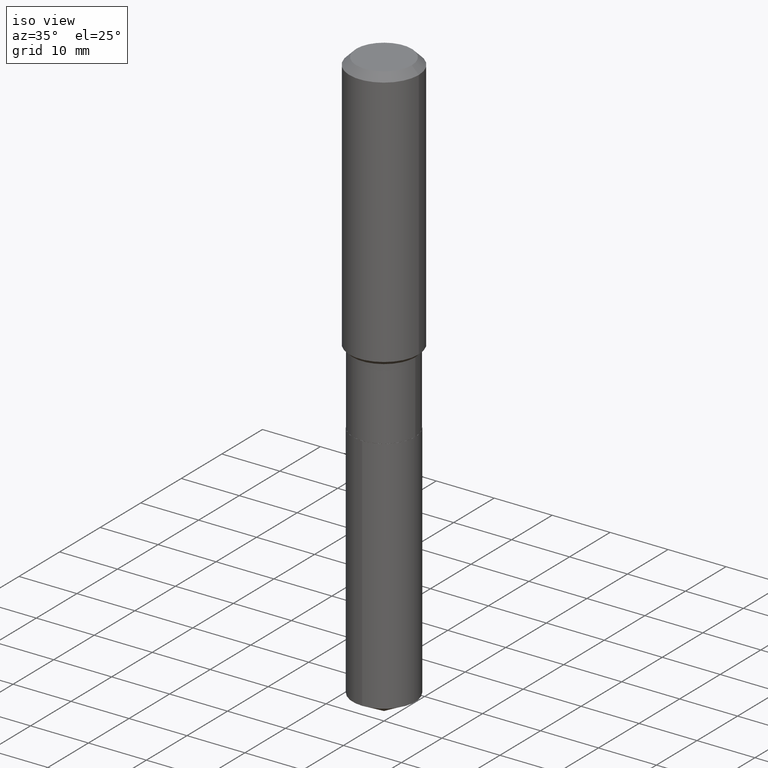
[diagram: clean part render]
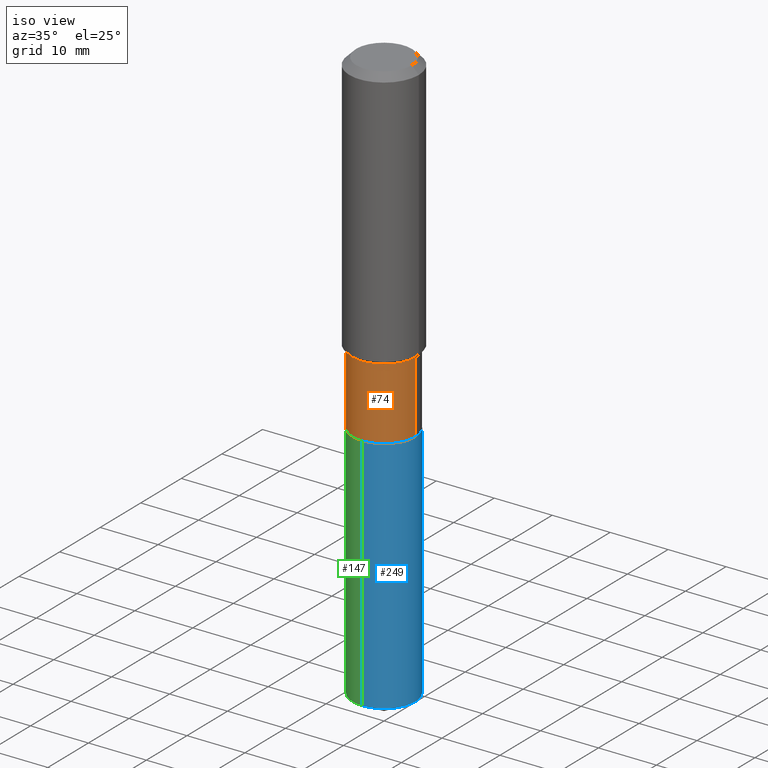
[diagram: same view with three faces highlighted in distinct colors, each labeled with its STEP entity id]
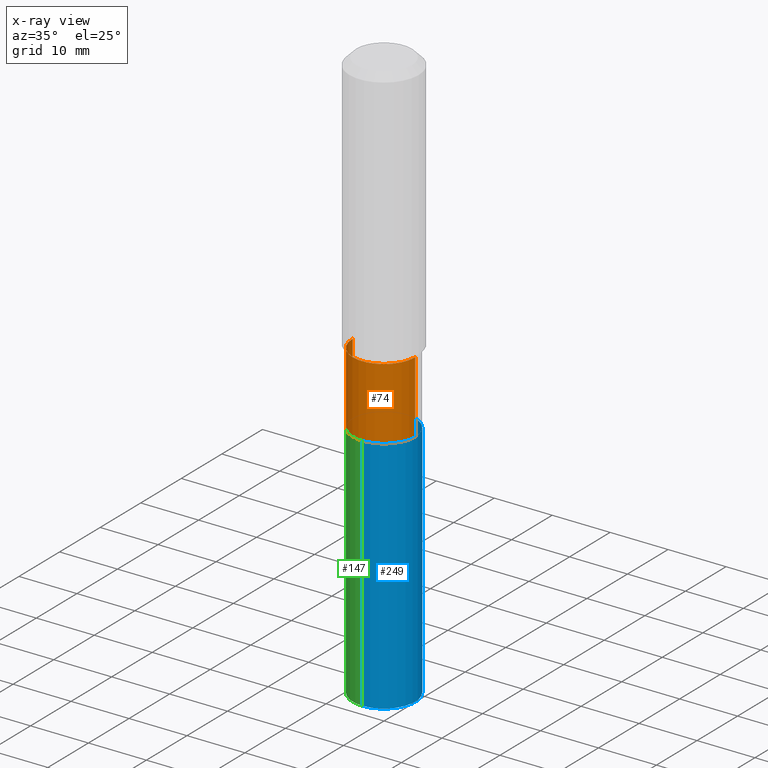
[diagram: x-ray of the same camera — body ghosted, the three highlighted faces saturated]
A machine part, iso view with three faces highlighted in distinct colors.
The next image is the same camera in x-ray (body ghosted, the three faces saturated) — at least one of them is partly hidden behind the body in this view.
Their STEP definitions:

[orange] entity #74 — the highlighted cylindrical surface (partial cylindrical patch) has radius 5.4 mm, axis along (-0, 0, 1).
#8 = DIRECTION ( 'NONE',  ( -2.445468806185136597E-29, 3.491481338843145583E-15, 1.000000000000000000 ) ) ;
#24 = VECTOR ( 'NONE', #298, 39.37007874015748143 ) ;
#34 = EDGE_CURVE ( 'NONE', #475, #96, #302, .T. ) ;
#35 = FACE_OUTER_BOUND ( 'NONE', #450, .T. ) ;
#74 = ADVANCED_FACE ( 'NONE', ( #35 ), #116, .T. ) ;
#82 = DIRECTION ( 'NONE',  ( 1.000000000000000000, -6.982962677686267499E-15, 4.876176775795935232E-29 ) ) ;
#96 = VERTEX_POINT ( 'NONE', #489 ) ;
#102 = CARTESIAN_POINT ( 'NONE',  ( 0.2126000000000000112, -9.427697911144257060E-15, -2.275000000000000355 ) ) ;
#104 = EDGE_CURVE ( 'NONE', #462, #96, #319, .T. ) ;
#116 = CYLINDRICAL_SURFACE ( 'NONE', #453, 0.2125999999999999834 ) ;
#155 = LINE ( 'NONE', #193, #24 ) ;
#161 = CARTESIAN_POINT ( 'NONE',  ( 4.368830022249746176E-29, -6.237531411843279954E-15, -1.786499999999999977 ) ) ;
#192 = VECTOR ( 'NONE', #271, 39.37007874015748143 ) ;
#193 = CARTESIAN_POINT ( 'NONE',  ( -0.2125999999999999834, 1.510613856225972877E-15, -1.045765600188192871E-29 ) ) ;
#199 = ORIENTED_EDGE ( 'NONE', *, *, #439, .T. ) ;
#224 = ORIENTED_EDGE ( 'NONE', *, *, #34, .F. ) ;
#235 = DIRECTION ( 'NONE',  ( -2.445468806185136597E-29, 3.491481338843145583E-15, 1.000000000000000000 ) ) ;
#244 = CARTESIAN_POINT ( 'NONE',  ( -0.2125999999999999279, -5.579711872629745688E-15, -1.786499999999999977 ) ) ;
#245 = DIRECTION ( 'NONE',  ( -2.445468806185136597E-29, 3.491481338843145583E-15, 1.000000000000000000 ) ) ;
#271 = DIRECTION ( 'NONE',  ( -2.445468806185136877E-29, 3.491481338843145188E-15, 1.000000000000000000 ) ) ;
#294 = AXIS2_PLACEMENT_3D ( 'NONE', #161, #245, #456 ) ;
#296 = CARTESIAN_POINT ( 'NONE',  ( 5.563441534071186206E-29, -7.943120045868156782E-15, -2.275000000000000355 ) ) ;
#298 = DIRECTION ( 'NONE',  ( -2.445468806185136877E-29, 3.491481338843145188E-15, 1.000000000000000000 ) ) ;
#302 = CIRCLE ( 'NONE', #294, 0.2125999999999999279 ) ;
#306 = CARTESIAN_POINT ( 'NONE',  ( 0.000000000000000000, 0.000000000000000000, 0.000000000000000000 ) ) ;
#319 = LINE ( 'NONE', #463, #192 ) ;
#349 = VERTEX_POINT ( 'NONE', #373 ) ;
#362 = ORIENTED_EDGE ( 'NONE', *, *, #104, .T. ) ;
#373 = CARTESIAN_POINT ( 'NONE',  ( -0.2126000000000000112, -5.579711872629745688E-15, -2.275000000000000355 ) ) ;
#383 = AXIS2_PLACEMENT_3D ( 'NONE', #296, #235, #481 ) ;
#406 = CIRCLE ( 'NONE', #383, 0.2126000000000000112 ) ;
#424 = EDGE_CURVE ( 'NONE', #349, #475, #155, .T. ) ;
#438 = ORIENTED_EDGE ( 'NONE', *, *, #424, .F. ) ;
#439 = EDGE_CURVE ( 'NONE', #349, #462, #406, .T. ) ;
#450 = EDGE_LOOP ( 'NONE', ( #438, #199, #362, #224 ) ) ;
#453 = AXIS2_PLACEMENT_3D ( 'NONE', #306, #8, #82 ) ;
#456 = DIRECTION ( 'NONE',  ( 1.000000000000000000, -6.982962677686268288E-15, 0.000000000000000000 ) ) ;
#462 = VERTEX_POINT ( 'NONE', #102 ) ;
#463 = CARTESIAN_POINT ( 'NONE',  ( 0.2125999999999999834, -1.484577865276100277E-15, 1.036675182534215730E-29 ) ) ;
#475 = VERTEX_POINT ( 'NONE', #244 ) ;
#481 = DIRECTION ( 'NONE',  ( 1.000000000000000000, -6.982962677686265133E-15, 0.000000000000000000 ) ) ;
#489 = CARTESIAN_POINT ( 'NONE',  ( 0.2125999999999999279, -7.722109277119379442E-15, -1.786499999999999977 ) ) ;

[blue] entity #249 — the highlighted cylindrical surface (partial cylindrical patch) has radius 5.4 mm, axis along (-0, 0, 1).
#7 = DIRECTION ( 'NONE',  ( -2.445557714556851823E-29, 3.491354016994499401E-15, 1.000000000000000000 ) ) ;
#9 = EDGE_CURVE ( 'NONE', #254, #114, #260, .T. ) ;
#21 = AXIS2_PLACEMENT_3D ( 'NONE', #281, #7, #121 ) ;
#40 = CARTESIAN_POINT ( 'NONE',  ( 1.510613856226067935E-15, 0.2125999999999863554, -3.902658574828771432 ) ) ;
#42 = CARTESIAN_POINT ( 'NONE',  ( 1.510613856226068330E-15, 0.2125999999999920453, -2.275500000000000966 ) ) ;
#61 = AXIS2_PLACEMENT_3D ( 'NONE', #123, #422, #434 ) ;
#114 = VERTEX_POINT ( 'NONE', #42 ) ;
#121 = DIRECTION ( 'NONE',  ( -6.982962677686265922E-15, -1.000000000000000000, 3.854912502818809557E-15 ) ) ;
#123 = CARTESIAN_POINT ( 'NONE',  ( 9.543974473954110073E-29, -1.362585241305305094E-14, -3.902658574828770988 ) ) ;
#133 = FACE_OUTER_BOUND ( 'NONE', #228, .T. ) ;
#135 = ORIENTED_EDGE ( 'NONE', *, *, #9, .T. ) ;
#136 = CARTESIAN_POINT ( 'NONE',  ( 5.564664268474277887E-29, -7.944865786537577497E-15, -2.275500000000000078 ) ) ;
#143 = VERTEX_POINT ( 'NONE', #164 ) ;
#145 = EDGE_CURVE ( 'NONE', #361, #254, #339, .T. ) ;
#148 = CARTESIAN_POINT ( 'NONE',  ( -1.484577865276044663E-15, -0.2126000000000079770, -2.275499999999999190 ) ) ;
#164 = CARTESIAN_POINT ( 'NONE',  ( -1.484577865276044663E-15, -0.2126000000000079770, -2.275499999999999190 ) ) ;
#194 = ORIENTED_EDGE ( 'NONE', *, *, #487, .F. ) ;
#213 = DIRECTION ( 'NONE',  ( -6.982962677686265922E-15, -1.000000000000000000, 3.854912502818809557E-15 ) ) ;
#228 = EDGE_LOOP ( 'NONE', ( #404, #135, #194, #460 ) ) ;
#249 = ADVANCED_FACE ( 'NONE', ( #133 ), #341, .T. ) ;
#254 = VERTEX_POINT ( 'NONE', #40 ) ;
#260 = LINE ( 'NONE', #446, #483 ) ;
#264 = DIRECTION ( 'NONE',  ( -2.445557714556851823E-29, 3.491354016994499401E-15, 1.000000000000000000 ) ) ;
#281 = CARTESIAN_POINT ( 'NONE',  ( 5.564664268474277887E-29, -7.944865786537577497E-15, -2.275500000000000078 ) ) ;
#285 = AXIS2_PLACEMENT_3D ( 'NONE', #136, #469, #213 ) ;
#339 = CIRCLE ( 'NONE', #61, 0.2126000000000000112 ) ;
#341 = CYLINDRICAL_SURFACE ( 'NONE', #21, 0.2126000000000000112 ) ;
#343 = CARTESIAN_POINT ( 'NONE',  ( -1.484577865276004825E-15, -0.2126000000000136114, -3.902658574828770099 ) ) ;
#353 = EDGE_CURVE ( 'NONE', #361, #143, #479, .T. ) ;
#361 = VERTEX_POINT ( 'NONE', #343 ) ;
#371 = CIRCLE ( 'NONE', #285, 0.2126000000000000112 ) ;
#404 = ORIENTED_EDGE ( 'NONE', *, *, #145, .T. ) ;
#422 = DIRECTION ( 'NONE',  ( -2.445557714556851823E-29, 3.491354016994499401E-15, 1.000000000000000000 ) ) ;
#431 = VECTOR ( 'NONE', #447, 39.37007874015748143 ) ;
#434 = DIRECTION ( 'NONE',  ( -6.982962677686265922E-15, -1.000000000000000000, 2.569941668545873170E-15 ) ) ;
#446 = CARTESIAN_POINT ( 'NONE',  ( 1.510613856226028295E-15, 0.2125999999999920453, -2.275500000000000966 ) ) ;
#447 = DIRECTION ( 'NONE',  ( -2.445557714556851823E-29, 3.491354016994499401E-15, 1.000000000000000000 ) ) ;
#460 = ORIENTED_EDGE ( 'NONE', *, *, #353, .F. ) ;
#469 = DIRECTION ( 'NONE',  ( -2.445557714556851823E-29, 3.491354016994499401E-15, 1.000000000000000000 ) ) ;
#479 = LINE ( 'NONE', #148, #431 ) ;
#483 = VECTOR ( 'NONE', #264, 39.37007874015748143 ) ;
#487 = EDGE_CURVE ( 'NONE', #143, #114, #371, .T. ) ;

[green] entity #147 — the highlighted cylindrical surface (partial cylindrical patch) has radius 5.4 mm, axis along (-0, 0, 1).
#9 = EDGE_CURVE ( 'NONE', #254, #114, #260, .T. ) ;
#15 = CARTESIAN_POINT ( 'NONE',  ( 9.543974473954110073E-29, -1.362585241305305094E-14, -3.902658574828770988 ) ) ;
#40 = CARTESIAN_POINT ( 'NONE',  ( 1.510613856226067935E-15, 0.2125999999999863554, -3.902658574828771432 ) ) ;
#42 = CARTESIAN_POINT ( 'NONE',  ( 1.510613856226068330E-15, 0.2125999999999920453, -2.275500000000000966 ) ) ;
#51 = FACE_OUTER_BOUND ( 'NONE', #165, .T. ) ;
#55 = ORIENTED_EDGE ( 'NONE', *, *, #360, .F. ) ;
#110 = CARTESIAN_POINT ( 'NONE',  ( 5.564664268474277887E-29, -7.944865786537577497E-15, -2.275500000000000078 ) ) ;
#114 = VERTEX_POINT ( 'NONE', #42 ) ;
#117 = CIRCLE ( 'NONE', #433, 0.2126000000000000112 ) ;
#143 = VERTEX_POINT ( 'NONE', #164 ) ;
#147 = ADVANCED_FACE ( 'NONE', ( #51 ), #217, .T. ) ;
#148 = CARTESIAN_POINT ( 'NONE',  ( -1.484577865276044663E-15, -0.2126000000000079770, -2.275499999999999190 ) ) ;
#164 = CARTESIAN_POINT ( 'NONE',  ( -1.484577865276044663E-15, -0.2126000000000079770, -2.275499999999999190 ) ) ;
#165 = EDGE_LOOP ( 'NONE', ( #464, #468, #246, #55 ) ) ;
#196 = EDGE_CURVE ( 'NONE', #254, #361, #117, .T. ) ;
#210 = AXIS2_PLACEMENT_3D ( 'NONE', #397, #322, #358 ) ;
#217 = CYLINDRICAL_SURFACE ( 'NONE', #210, 0.2126000000000000112 ) ;
#246 = ORIENTED_EDGE ( 'NONE', *, *, #353, .T. ) ;
#254 = VERTEX_POINT ( 'NONE', #40 ) ;
#260 = LINE ( 'NONE', #446, #483 ) ;
#264 = DIRECTION ( 'NONE',  ( -2.445557714556851823E-29, 3.491354016994499401E-15, 1.000000000000000000 ) ) ;
#265 = DIRECTION ( 'NONE',  ( -2.445557714556851823E-29, 3.491354016994499401E-15, 1.000000000000000000 ) ) ;
#291 = DIRECTION ( 'NONE',  ( -2.445557714556851823E-29, 3.491354016994499401E-15, 1.000000000000000000 ) ) ;
#322 = DIRECTION ( 'NONE',  ( -2.445557714556851823E-29, 3.491354016994499401E-15, 1.000000000000000000 ) ) ;
#343 = CARTESIAN_POINT ( 'NONE',  ( -1.484577865276004825E-15, -0.2126000000000136114, -3.902658574828770099 ) ) ;
#353 = EDGE_CURVE ( 'NONE', #361, #143, #479, .T. ) ;
#358 = DIRECTION ( 'NONE',  ( -6.982962677686265922E-15, -1.000000000000000000, 3.854912502818809557E-15 ) ) ;
#360 = EDGE_CURVE ( 'NONE', #114, #143, #423, .T. ) ;
#361 = VERTEX_POINT ( 'NONE', #343 ) ;
#397 = CARTESIAN_POINT ( 'NONE',  ( 5.564664268474277887E-29, -7.944865786537577497E-15, -2.275500000000000078 ) ) ;
#408 = DIRECTION ( 'NONE',  ( -6.982962677686265922E-15, -1.000000000000000000, 3.854912502818809557E-15 ) ) ;
#423 = CIRCLE ( 'NONE', #444, 0.2126000000000000112 ) ;
#431 = VECTOR ( 'NONE', #447, 39.37007874015748143 ) ;
#433 = AXIS2_PLACEMENT_3D ( 'NONE', #15, #291, #437 ) ;
#437 = DIRECTION ( 'NONE',  ( -6.982962677686265922E-15, -1.000000000000000000, 2.569941668545873170E-15 ) ) ;
#444 = AXIS2_PLACEMENT_3D ( 'NONE', #110, #265, #408 ) ;
#446 = CARTESIAN_POINT ( 'NONE',  ( 1.510613856226028295E-15, 0.2125999999999920453, -2.275500000000000966 ) ) ;
#447 = DIRECTION ( 'NONE',  ( -2.445557714556851823E-29, 3.491354016994499401E-15, 1.000000000000000000 ) ) ;
#464 = ORIENTED_EDGE ( 'NONE', *, *, #9, .F. ) ;
#468 = ORIENTED_EDGE ( 'NONE', *, *, #196, .T. ) ;
#479 = LINE ( 'NONE', #148, #431 ) ;
#483 = VECTOR ( 'NONE', #264, 39.37007874015748143 ) ;